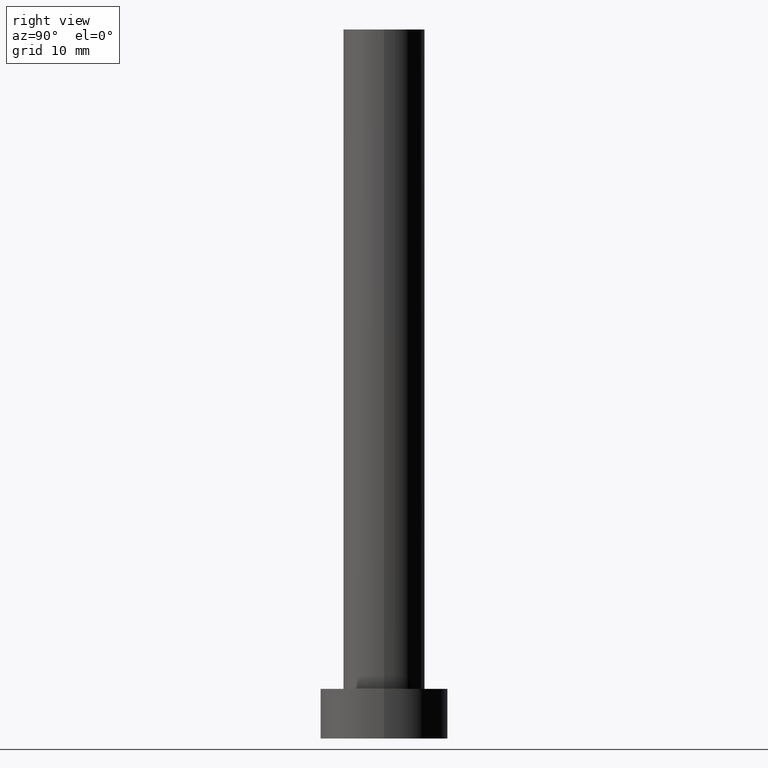
[diagram: clean part render]
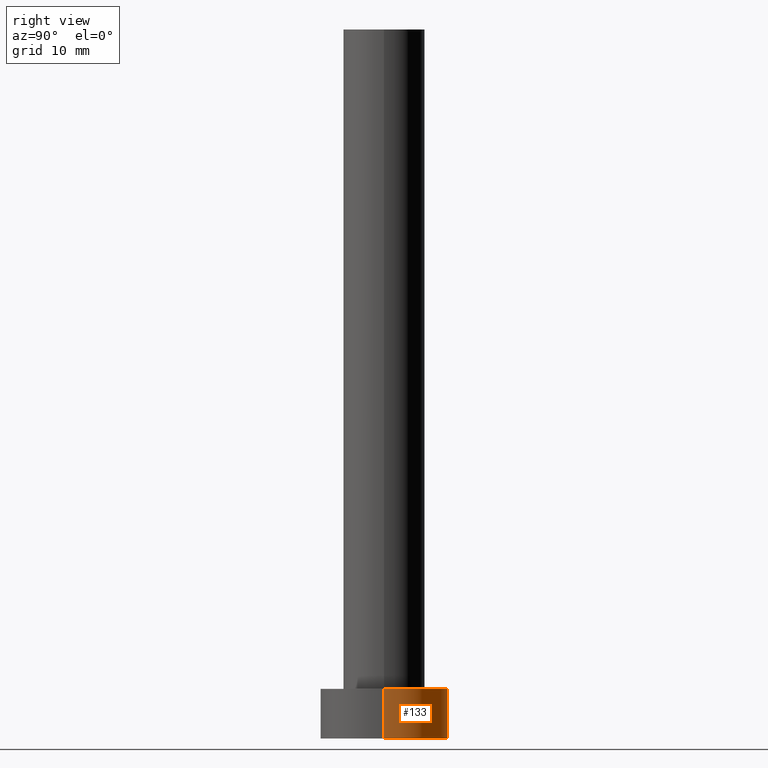
[diagram: same view with one face highlighted and labeled with its STEP entity id]
A machine part, right view. The second image highlights one B-rep face of the part: STEP entity #133.
In plain terms, the highlighted cylindrical surface (partial cylindrical patch) has radius 9 mm, axis along (-0, -0, -1).
Its self-contained STEP definition (entity closure, byte-faithful):
#7 = EDGE_LOOP ( 'NONE', ( #217, #252, #173, #56 ) ) ;
#8 = CARTESIAN_POINT ( 'NONE',  ( 9.000000000000000000, 1.102182119232617714E-15, 7.000000000000000000 ) ) ;
#10 = CARTESIAN_POINT ( 'NONE',  ( -9.000000000000000000, 0.000000000000000000, 7.000000000000000000 ) ) ;
#11 = DIRECTION ( 'NONE',  ( -0.000000000000000000, -0.000000000000000000, -1.000000000000000000 ) ) ;
#20 = VECTOR ( 'NONE', #51, 1000.000000000000000 ) ;
#27 = EDGE_CURVE ( 'NONE', #112, #81, #103, .T. ) ;
#37 = LINE ( 'NONE', #147, #149 ) ;
#39 = EDGE_CURVE ( 'NONE', #81, #83, #195, .T. ) ;
#46 = CYLINDRICAL_SURFACE ( 'NONE', #71, 9.000000000000000000 ) ;
#51 = DIRECTION ( 'NONE',  ( -0.000000000000000000, -0.000000000000000000, -1.000000000000000000 ) ) ;
#54 = CARTESIAN_POINT ( 'NONE',  ( 0.000000000000000000, 0.000000000000000000, 0.000000000000000000 ) ) ;
#56 = ORIENTED_EDGE ( 'NONE', *, *, #127, .F. ) ;
#66 = CARTESIAN_POINT ( 'NONE',  ( 9.000000000000000000, 1.102182119232617714E-15, 0.000000000000000000 ) ) ;
#70 = FACE_OUTER_BOUND ( 'NONE', #7, .T. ) ;
#71 = AXIS2_PLACEMENT_3D ( 'NONE', #244, #11, #139 ) ;
#74 = CARTESIAN_POINT ( 'NONE',  ( 0.000000000000000000, 0.000000000000000000, 7.000000000000000000 ) ) ;
#75 = DIRECTION ( 'NONE',  ( 1.000000000000000000, 0.000000000000000000, 0.000000000000000000 ) ) ;
#81 = VERTEX_POINT ( 'NONE', #66 ) ;
#83 = VERTEX_POINT ( 'NONE', #228 ) ;
#103 = LINE ( 'NONE', #232, #20 ) ;
#112 = VERTEX_POINT ( 'NONE', #8 ) ;
#122 = DIRECTION ( 'NONE',  ( 1.000000000000000000, 0.000000000000000000, 0.000000000000000000 ) ) ;
#127 = EDGE_CURVE ( 'NONE', #251, #83, #37, .T. ) ;
#133 = ADVANCED_FACE ( 'NONE', ( #70 ), #46, .T. ) ;
#139 = DIRECTION ( 'NONE',  ( -1.000000000000000000, 0.000000000000000000, 0.000000000000000000 ) ) ;
#143 = EDGE_CURVE ( 'NONE', #112, #251, #175, .T. ) ;
#147 = CARTESIAN_POINT ( 'NONE',  ( -9.000000000000000000, 0.000000000000000000, 7.000000000000000000 ) ) ;
#149 = VECTOR ( 'NONE', #237, 1000.000000000000000 ) ;
#163 = AXIS2_PLACEMENT_3D ( 'NONE', #54, #170, #122 ) ;
#170 = DIRECTION ( 'NONE',  ( 0.000000000000000000, 0.000000000000000000, 1.000000000000000000 ) ) ;
#173 = ORIENTED_EDGE ( 'NONE', *, *, #39, .T. ) ;
#175 = CIRCLE ( 'NONE', #213, 9.000000000000000000 ) ;
#195 = CIRCLE ( 'NONE', #163, 9.000000000000000000 ) ;
#213 = AXIS2_PLACEMENT_3D ( 'NONE', #74, #240, #75 ) ;
#217 = ORIENTED_EDGE ( 'NONE', *, *, #143, .F. ) ;
#228 = CARTESIAN_POINT ( 'NONE',  ( -9.000000000000000000, 0.000000000000000000, 0.000000000000000000 ) ) ;
#232 = CARTESIAN_POINT ( 'NONE',  ( 9.000000000000000000, 1.102182119232617714E-15, 7.000000000000000000 ) ) ;
#237 = DIRECTION ( 'NONE',  ( -0.000000000000000000, -0.000000000000000000, -1.000000000000000000 ) ) ;
#240 = DIRECTION ( 'NONE',  ( 0.000000000000000000, 0.000000000000000000, 1.000000000000000000 ) ) ;
#244 = CARTESIAN_POINT ( 'NONE',  ( 0.000000000000000000, 0.000000000000000000, 7.000000000000000000 ) ) ;
#251 = VERTEX_POINT ( 'NONE', #10 ) ;
#252 = ORIENTED_EDGE ( 'NONE', *, *, #27, .T. ) ;